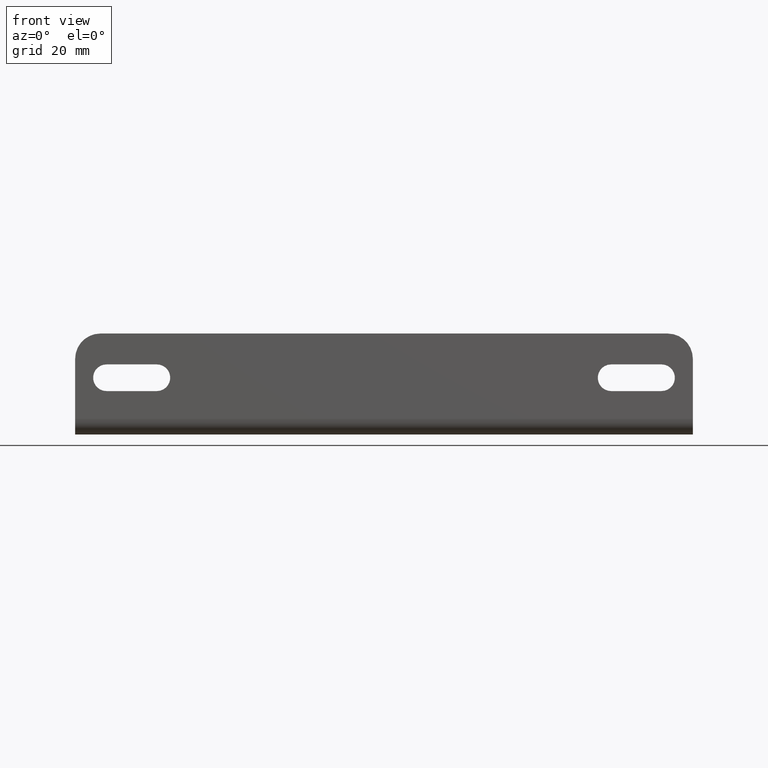
[diagram: clean part render]
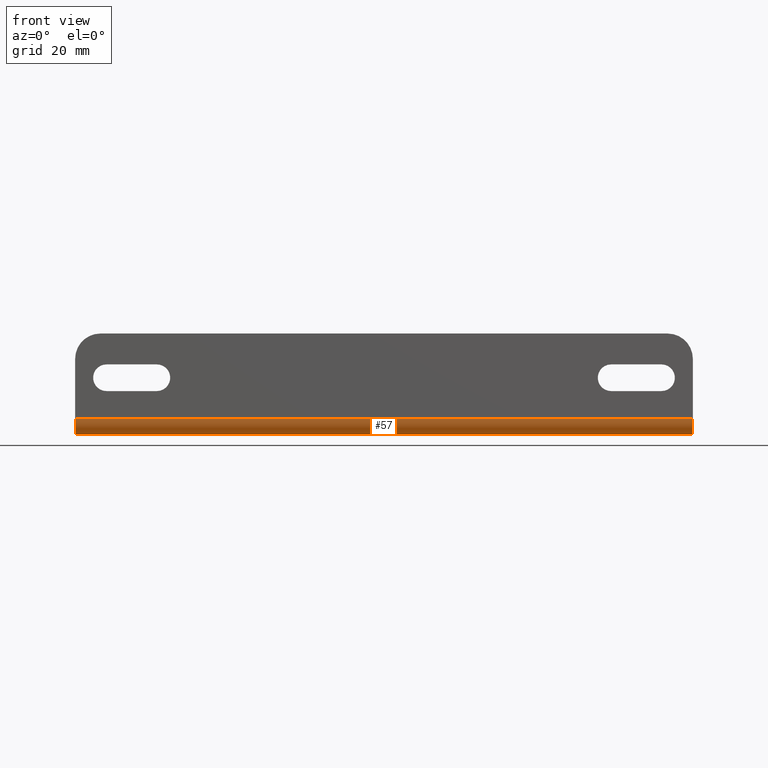
[diagram: same view with one face highlighted and labeled with its STEP entity id]
A machine part, front view. The second image highlights one B-rep face of the part: STEP entity #57.
In plain terms, the highlighted cylindrical surface (edge-blend (fillet) strip) has radius 3.9116 mm, axis along (-1, -0, -0).
Its self-contained STEP definition (entity closure, byte-faithful):
#9 = LINE ( 'NONE', #1859, #1837 ) ;
#57 = ADVANCED_FACE ( 'NONE', ( #2164 ), #1914, .T. ) ;
#90 = CARTESIAN_POINT ( 'NONE',  ( 0.0000000000000000000, 0.02899999999999998400, -0.1250000000000000000 ) ) ;
#180 = CARTESIAN_POINT ( 'NONE',  ( 6.120000000000000100, -0.1249999999999999900, 0.02900000000000004000 ) ) ;
#396 = EDGE_CURVE ( 'NONE', #1649, #1598, #2019, .T. ) ;
#467 = CARTESIAN_POINT ( 'NONE',  ( 6.120000000000000100, 0.02900000000000000100, 0.02900000000000000800 ) ) ;
#532 = EDGE_LOOP ( 'NONE', ( #631, #910, #1907, #826 ) ) ;
#609 = CARTESIAN_POINT ( 'NONE',  ( 0.0000000000000000000, -0.1249999999999999900, 0.02900000000000004000 ) ) ;
#631 = ORIENTED_EDGE ( 'NONE', *, *, #701, .T. ) ;
#693 = CARTESIAN_POINT ( 'NONE',  ( 6.120000000000000100, 0.02899999999999998400, -0.1250000000000000000 ) ) ;
#701 = EDGE_CURVE ( 'NONE', #815, #1193, #1821, .T. ) ;
#811 = DIRECTION ( 'NONE',  ( -1.000000000000000000, -0.0000000000000000000, -0.0000000000000000000 ) ) ;
#815 = VERTEX_POINT ( 'NONE', #609 ) ;
#826 = ORIENTED_EDGE ( 'NONE', *, *, #2277, .T. ) ;
#828 = DIRECTION ( 'NONE',  ( -1.000000000000000000, -0.0000000000000000000, -0.0000000000000000000 ) ) ;
#904 = LINE ( 'NONE', #951, #1830 ) ;
#910 = ORIENTED_EDGE ( 'NONE', *, *, #1824, .F. ) ;
#951 = CARTESIAN_POINT ( 'NONE',  ( 6.120000000000000100, 0.02899999999999998400, -0.1250000000000000000 ) ) ;
#975 = AXIS2_PLACEMENT_3D ( 'NONE', #1542, #2046, #1291 ) ;
#1029 = AXIS2_PLACEMENT_3D ( 'NONE', #1570, #1736, #1920 ) ;
#1193 = VERTEX_POINT ( 'NONE', #90 ) ;
#1291 = DIRECTION ( 'NONE',  ( 0.0000000000000000000, 0.0000000000000000000, -1.000000000000000000 ) ) ;
#1524 = DIRECTION ( 'NONE',  ( 0.0000000000000000000, 0.0000000000000000000, 1.000000000000000000 ) ) ;
#1542 = CARTESIAN_POINT ( 'NONE',  ( 0.0000000000000000000, 0.02900000000000000100, 0.02900000000000000800 ) ) ;
#1570 = CARTESIAN_POINT ( 'NONE',  ( 6.120000000000000100, 0.02900000000000000100, 0.02900000000000000800 ) ) ;
#1598 = VERTEX_POINT ( 'NONE', #693 ) ;
#1649 = VERTEX_POINT ( 'NONE', #180 ) ;
#1736 = DIRECTION ( 'NONE',  ( 1.000000000000000000, 0.0000000000000000000, 0.0000000000000000000 ) ) ;
#1821 = CIRCLE ( 'NONE', #975, 0.1539999999999999700 ) ;
#1824 = EDGE_CURVE ( 'NONE', #1598, #1193, #904, .T. ) ;
#1830 = VECTOR ( 'NONE', #2176, 39.37007874015748100 ) ;
#1837 = VECTOR ( 'NONE', #811, 39.37007874015748100 ) ;
#1859 = CARTESIAN_POINT ( 'NONE',  ( 6.120000000000000100, -0.1249999999999999900, 0.02900000000000004000 ) ) ;
#1907 = ORIENTED_EDGE ( 'NONE', *, *, #396, .F. ) ;
#1914 = CYLINDRICAL_SURFACE ( 'NONE', #2243, 0.1539999999999999700 ) ;
#1920 = DIRECTION ( 'NONE',  ( 0.0000000000000000000, 0.0000000000000000000, -1.000000000000000000 ) ) ;
#2019 = CIRCLE ( 'NONE', #1029, 0.1539999999999999700 ) ;
#2046 = DIRECTION ( 'NONE',  ( 1.000000000000000000, 0.0000000000000000000, 0.0000000000000000000 ) ) ;
#2164 = FACE_OUTER_BOUND ( 'NONE', #532, .T. ) ;
#2176 = DIRECTION ( 'NONE',  ( -1.000000000000000000, -0.0000000000000000000, -0.0000000000000000000 ) ) ;
#2243 = AXIS2_PLACEMENT_3D ( 'NONE', #467, #828, #1524 ) ;
#2277 = EDGE_CURVE ( 'NONE', #1649, #815, #9, .T. ) ;